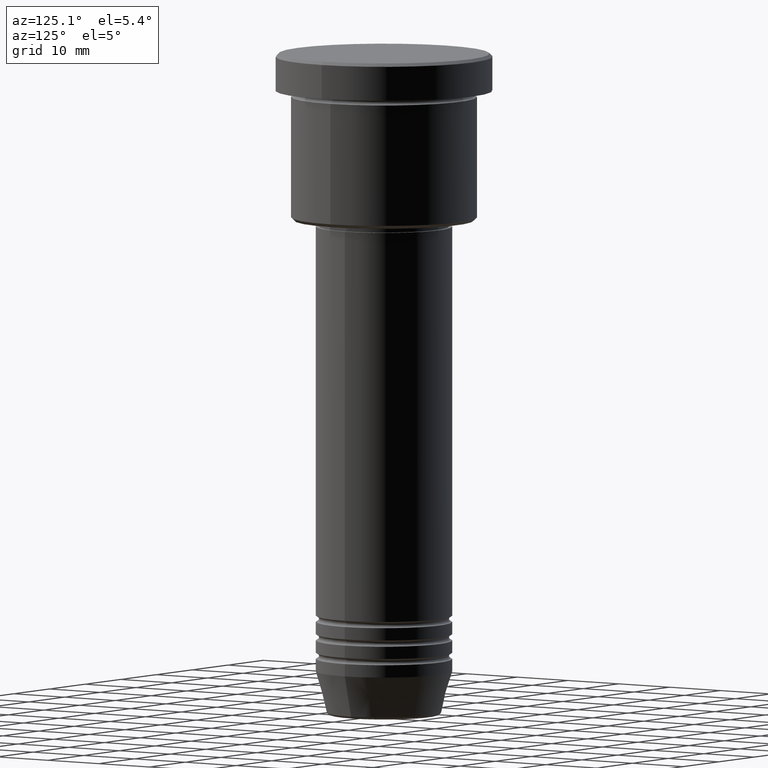
[diagram: clean part render]
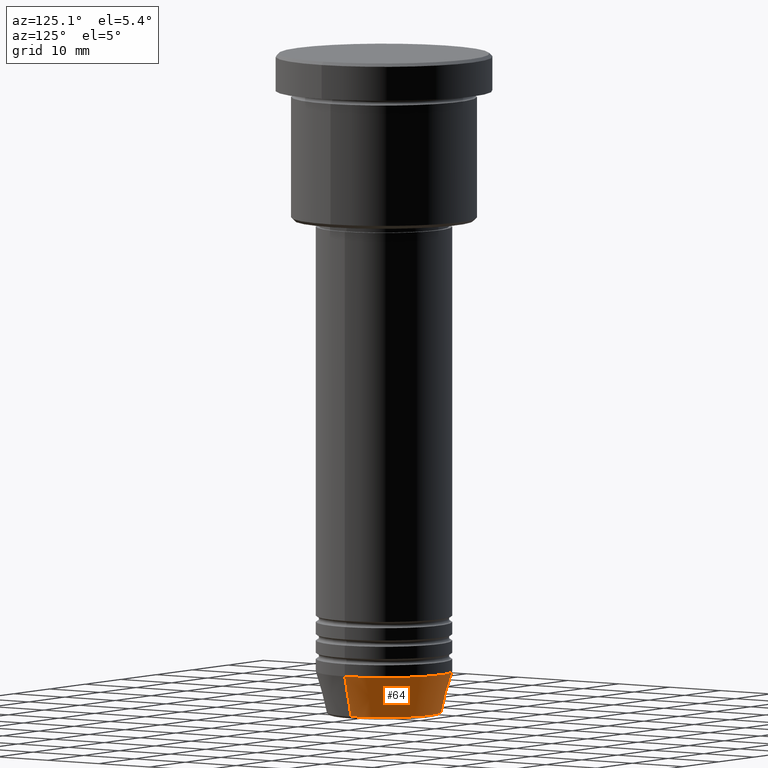
[diagram: same view with one face highlighted and labeled with its STEP entity id]
A machine part, auxiliary view. The second image highlights one B-rep face of the part: STEP entity #64.
In plain terms, the highlighted conical surface has half-angle 15 deg.
Its self-contained STEP definition (entity closure, byte-faithful):
#4 = VERTEX_POINT ( 'NONE', #1087 ) ;
#8 = AXIS2_PLACEMENT_3D ( 'NONE', #1178, #264, #91 ) ;
#10 = DIRECTION ( 'NONE',  ( 1.000000000000000000, 0.000000000000000000, 0.000000000000000000 ) ) ;
#64 = ADVANCED_FACE ( 'NONE', ( #823 ), #397, .T. ) ;
#66 = DIRECTION ( 'NONE',  ( -0.2588190451025213501, 3.169619151431772337E-17, 0.9659258262890680902 ) ) ;
#91 = DIRECTION ( 'NONE',  ( 1.000000000000000000, 0.000000000000000000, 0.000000000000000000 ) ) ;
#174 = VERTEX_POINT ( 'NONE', #222 ) ;
#222 = CARTESIAN_POINT ( 'NONE',  ( -9.223655072137191269, 1.238341722557647202E-15, -106.6294095225512422 ) ) ;
#264 = DIRECTION ( 'NONE',  ( -0.000000000000000000, -0.000000000000000000, 1.000000000000000000 ) ) ;
#348 = AXIS2_PLACEMENT_3D ( 'NONE', #379, #487, #10 ) ;
#379 = CARTESIAN_POINT ( 'NONE',  ( 0.000000000000000000, 0.000000000000000000, -100.0000000000000000 ) ) ;
#392 = EDGE_CURVE ( 'NONE', #772, #174, #655, .T. ) ;
#397 = CONICAL_SURFACE ( 'NONE', #8, 11.00000000000000000, 0.2617993877991500740 ) ;
#418 = ORIENTED_EDGE ( 'NONE', *, *, #1182, .F. ) ;
#421 = LINE ( 'NONE', #1158, #767 ) ;
#444 = VECTOR ( 'NONE', #66, 1000.000000000000000 ) ;
#469 = CARTESIAN_POINT ( 'NONE',  ( 9.223655072137191269, 0.000000000000000000, -106.6294095225512422 ) ) ;
#487 = DIRECTION ( 'NONE',  ( -0.000000000000000000, -0.000000000000000000, 1.000000000000000000 ) ) ;
#535 = EDGE_CURVE ( 'NONE', #772, #4, #421, .T. ) ;
#543 = LINE ( 'NONE', #973, #444 ) ;
#571 = VERTEX_POINT ( 'NONE', #1086 ) ;
#616 = DIRECTION ( 'NONE',  ( 0.2588190451025213501, 0.000000000000000000, 0.9659258262890680902 ) ) ;
#655 = CIRCLE ( 'NONE', #724, 9.223655072137191269 ) ;
#703 = DIRECTION ( 'NONE',  ( 1.000000000000000000, 0.000000000000000000, 0.000000000000000000 ) ) ;
#724 = AXIS2_PLACEMENT_3D ( 'NONE', #1135, #1155, #703 ) ;
#767 = VECTOR ( 'NONE', #616, 1000.000000000000000 ) ;
#772 = VERTEX_POINT ( 'NONE', #469 ) ;
#799 = ORIENTED_EDGE ( 'NONE', *, *, #392, .T. ) ;
#823 = FACE_OUTER_BOUND ( 'NONE', #993, .T. ) ;
#901 = CIRCLE ( 'NONE', #348, 11.00000000000000000 ) ;
#973 = CARTESIAN_POINT ( 'NONE',  ( -11.00000000000000000, 1.347111479062088405E-15, -100.0000000000000000 ) ) ;
#993 = EDGE_LOOP ( 'NONE', ( #799, #1113, #418, #1021 ) ) ;
#1012 = EDGE_CURVE ( 'NONE', #174, #571, #543, .T. ) ;
#1021 = ORIENTED_EDGE ( 'NONE', *, *, #535, .F. ) ;
#1086 = CARTESIAN_POINT ( 'NONE',  ( -11.00000000000000000, 1.347111479062088405E-15, -100.0000000000000000 ) ) ;
#1087 = CARTESIAN_POINT ( 'NONE',  ( 11.00000000000000000, 0.000000000000000000, -100.0000000000000000 ) ) ;
#1113 = ORIENTED_EDGE ( 'NONE', *, *, #1012, .T. ) ;
#1135 = CARTESIAN_POINT ( 'NONE',  ( 0.000000000000000000, 0.000000000000000000, -106.6294095225512422 ) ) ;
#1155 = DIRECTION ( 'NONE',  ( -0.000000000000000000, -0.000000000000000000, 1.000000000000000000 ) ) ;
#1158 = CARTESIAN_POINT ( 'NONE',  ( 11.00000000000000000, 0.000000000000000000, -100.0000000000000000 ) ) ;
#1178 = CARTESIAN_POINT ( 'NONE',  ( 0.000000000000000000, 0.000000000000000000, -100.0000000000000000 ) ) ;
#1182 = EDGE_CURVE ( 'NONE', #4, #571, #901, .T. ) ;